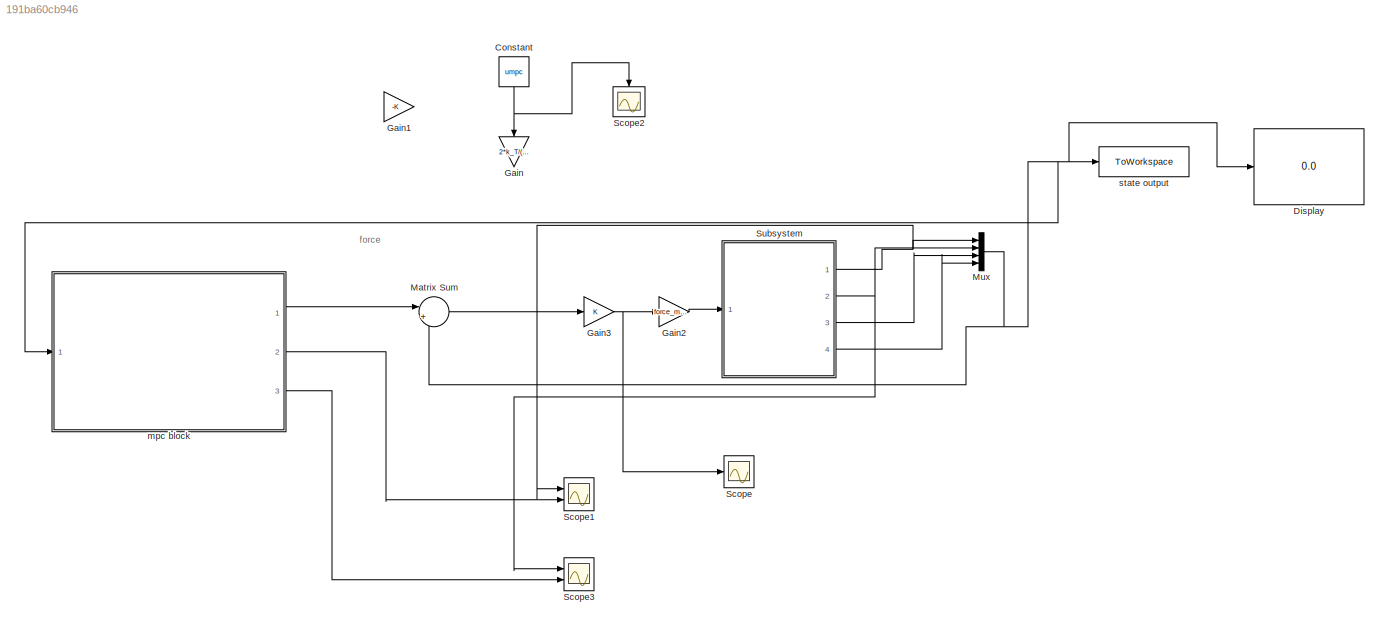
MODEL slx_191ba60cb946
KIND model
CONFIG AbsTol = auto
CONFIG EnableMultiTasking = off
CONFIG FixedStep = auto
CONFIG MaxStep = auto
CONFIG MinStep = auto
CONFIG RelTol = 1e-3
CONFIG SampleTimeConstraint = Unconstrained
CONFIG Solver = ode45
CONFIG SolverName = ode45
CONFIG StartTime = 0.0
CONFIG StopTime = 10
BLOCK [Constant] Constant
  Commented = on
  Value = umpc
BLOCK [Display] Display
  Decimation = 1
  Ports = [1]
BLOCK [Gain] Gain
  Commented = on
  Gain = 2*k_T/(R*r)
  OutDataTypeStr = Inherit: Inherit via internal rule
  ParamDataTypeStr = Inherit: Inherit via internal rule
  SaturateOnIntegerOverflow = off
BLOCK [Gain] Gain1
  Commented = on
  Gain = -K
  Multiplication = Matrix(K*u)
  OutDataTypeStr = Inherit: Inherit via internal rule
  ParamDataTypeStr = Inherit: Inherit via internal rule
  SaturateOnIntegerOverflow = off
BLOCK [Gain] Gain2
  Gain = force_multiplier
  OutDataTypeStr = Inherit: Inherit via internal rule
  ParamDataTypeStr = Inherit: Inherit via internal rule
  SaturateOnIntegerOverflow = off
BLOCK [Gain] Gain3
  Gain = K
  Multiplication = Matrix(K*u)
  OutDataTypeStr = Inherit: Inherit via internal rule
  ParamDataTypeStr = Inherit: Inherit via internal rule
  SaturateOnIntegerOverflow = off
BLOCK [Sum] Matrix Sum
  IconShape = round
  InputSameDT = off
  Inputs = |+-
  OutDataTypeStr = Inherit: Inherit via internal rule
  Ports = [2, 1]
  SaturateOnIntegerOverflow = off
BLOCK [Mux] Mux
  DisplayOption = bar
  Ports = [4, 1]
BLOCK [Scope] Scope
  Floating = off
  NumInputPorts = 1
  Ports = [1]
  ScopeSpecificationString = Simulink.scopes.TimeScopeBlockCfg('CurrentConfiguration', extmgr.ConfigurationSet(extmgr.Configuration('Core','General UI',true,'FigureColor',[1 1 1]),extmgr.Configuration('Core','Source UI',true),extmgr.Configuration('Sources','WiredSimulink',true,'DataLoggingVariableName','ScopeData1'),extmgr.Configuration('Visuals','Time Domain',true,'SerializedDisplays',{struct('MinYLimReal','-13.22858','MaxYL...<+1761ch>
BLOCK [Scope] Scope1
  Floating = off
  NumInputPorts = 2
  Ports = [2]
  ScopeSpecificationString = Simulink.scopes.TimeScopeBlockCfg('CurrentConfiguration', extmgr.ConfigurationSet(extmgr.Configuration('Core','General UI',true,'FigureColor',[1 1 1]),extmgr.Configuration('Core','Source UI',true),extmgr.Configuration('Sources','WiredSimulink',true,'DataLoggingVariableName','ScopeData1'),extmgr.Configuration('Visuals','Time Domain',true,'SerializedDisplays',{struct('MinYLimReal','-30.41312','MaxYL...<+1937ch>
BLOCK [Scope] Scope2
  Commented = on
  Floating = off
  NumInputPorts = 1
  Ports = [1]
  ScopeSpecificationString = Simulink.scopes.TimeScopeBlockCfg('CurrentConfiguration', extmgr.ConfigurationSet(extmgr.Configuration('Core','General UI',true),extmgr.Configuration('Core','Source UI',true),extmgr.Configuration('Sources','WiredSimulink',true,'DataLoggingVariableName','ScopeData1'),extmgr.Configuration('Visuals','Time Domain',true),extmgr.Configuration('Tools','Plot Navigation',true),extmgr.Configuration('Tools',...<+40ch>
BLOCK [Scope] Scope3
  Floating = off
  NumInputPorts = 2
  Ports = [2]
  ScopeSpecificationString = Simulink.scopes.TimeScopeBlockCfg('CurrentConfiguration', extmgr.ConfigurationSet(extmgr.Configuration('Core','General UI',true,'FigureColor',[1 1 1]),extmgr.Configuration('Core','Source UI',true),extmgr.Configuration('Sources','WiredSimulink',true,'DataLoggingVariableName','ScopeData1'),extmgr.Configuration('Visuals','Time Domain',true,'SerializedDisplays',{struct('MinYLimReal','-4.70017','MaxYLi...<+1823ch>
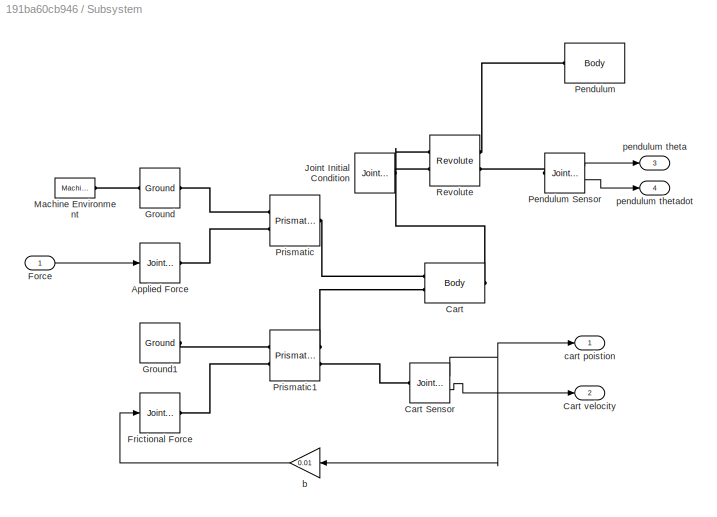
BLOCK [SubSystem] Subsystem
  Ports = [1, 4]
  RequestExecContextInheritance = off
BLOCK [Reference] Subsystem/ Pendulum Sensor  REF=mblibv1/Sensors & 
Actuators/Joint Sensor
  Ports = [0, 2, 0, 0, 0, 1]
  SourceBlock = mblibv1/Sensors & \nActuators/Joint Sensor
  SourceProductBaseCode = MS
  SourceProductName = Simscape Multibody
  SourceType = Joint Sensor
BLOCK [Reference] Subsystem/Applied Force  REF=mblibv1/Sensors & 
Actuators/Joint Actuator
  Ports = [1, 0, 0, 0, 0, 0, 1]
  SourceBlock = mblibv1/Sensors & \nActuators/Joint Actuator
  SourceProductBaseCode = MS
  SourceProductName = Simscape Multibody
  SourceType = Joint Actuator
BLOCK [Reference] Subsystem/Cart  REF=mblibv1/Bodies/Body
  Ports = [0, 0, 0, 0, 0, 2, 1]
  SourceBlock = mblibv1/Bodies/Body
  SourceProductBaseCode = MS
  SourceProductName = Simscape Multibody
  SourceType = Body
BLOCK [Reference] Subsystem/Cart Sensor  REF=mblibv1/Sensors & 
Actuators/Joint Sensor
  Ports = [0, 2, 0, 0, 0, 1]
  SourceBlock = mblibv1/Sensors & \nActuators/Joint Sensor
  SourceProductBaseCode = MS
  SourceProductName = Simscape Multibody
  SourceType = Joint Sensor
BLOCK [Outport] Subsystem/Cart velocity
  IconDisplay = Port number
  Port = 2
BLOCK [Inport] Subsystem/Force
  IconDisplay = Port number
BLOCK [Reference] Subsystem/Frictional Force  REF=mblibv1/Sensors & 
Actuators/Joint Actuator
  Ports = [1, 0, 0, 0, 0, 0, 1]
  SourceBlock = mblibv1/Sensors & \nActuators/Joint Actuator
  SourceProductBaseCode = MS
  SourceProductName = Simscape Multibody
  SourceType = Joint Actuator
BLOCK [Reference] Subsystem/Ground  REF=mblibv1/Bodies/Ground
  Ports = [0, 0, 0, 0, 0, 1, 1]
  SourceBlock = mblibv1/Bodies/Ground
  SourceProductBaseCode = MS
  SourceProductName = Simscape Multibody
  SourceType = Ground
  UserDataPersistent = on
BLOCK [Reference] Subsystem/Ground1  REF=mblibv1/Bodies/Ground
  Ports = [0, 0, 0, 0, 0, 0, 1]
  SourceBlock = mblibv1/Bodies/Ground
  SourceProductBaseCode = MS
  SourceProductName = Simscape Multibody
  SourceType = Ground
  UserDataPersistent = on
BLOCK [Reference] Subsystem/Joint Initial Condition  REF=mblibv1/Sensors & 
Actuators/Joint Initial Condition
  Ports = [0, 0, 0, 0, 0, 0, 1]
  SourceBlock = mblibv1/Sensors & \nActuators/Joint Initial Condition
  SourceProductBaseCode = MS
  SourceProductName = Simscape Multibody
  SourceType = Joint Initial Condition
BLOCK [Reference] Subsystem/Machine Environment  REF=mblibv1/Bodies/Machine
Environment
  Ports = [0, 0, 0, 0, 0, 0, 1]
  SourceBlock = mblibv1/Bodies/Machine\nEnvironment
  SourceProductBaseCode = MS
  SourceProductName = Simscape Multibody
  SourceType = Machine Environment
BLOCK [Reference] Subsystem/Pendulum  REF=mblibv1/Bodies/Body
  Ports = [0, 0, 0, 0, 0, 1]
  SourceBlock = mblibv1/Bodies/Body
  SourceProductBaseCode = MS
  SourceProductName = Simscape Multibody
  SourceType = Body
BLOCK [Reference] Subsystem/Prismatic  REF=mblibv1/Joints/Prismatic
  Ports = [0, 0, 0, 0, 0, 2, 1]
  SourceBlock = mblibv1/Joints/Prismatic
  SourceProductBaseCode = MS
  SourceProductName = Simscape Multibody
  SourceType = Prismatic
BLOCK [Reference] Subsystem/Prismatic1  REF=mblibv1/Joints/Prismatic
  Ports = [0, 0, 0, 0, 0, 2, 2]
  SourceBlock = mblibv1/Joints/Prismatic
  SourceProductBaseCode = MS
  SourceProductName = Simscape Multibody
  SourceType = Prismatic
BLOCK [Reference] Subsystem/Revolute  REF=mblibv1/Joints/Revolute
  Ports = [0, 0, 0, 0, 0, 2, 2]
  SourceBlock = mblibv1/Joints/Revolute
  SourceProductBaseCode = MS
  SourceProductName = Simscape Multibody
  SourceType = Revolute
BLOCK [Gain] Subsystem/b
  Gain = 0.01
  OutDataTypeStr = Inherit: Inherit via internal rule
  ParamDataTypeStr = Inherit: Inherit via internal rule
  SaturateOnIntegerOverflow = off
BLOCK [Outport] Subsystem/cart poistion
  IconDisplay = Port number
BLOCK [Outport] Subsystem/pendulum theta
  IconDisplay = Port number
  Port = 3
BLOCK [Outport] Subsystem/pendulum thetadot
  IconDisplay = Port number
  Port = 4
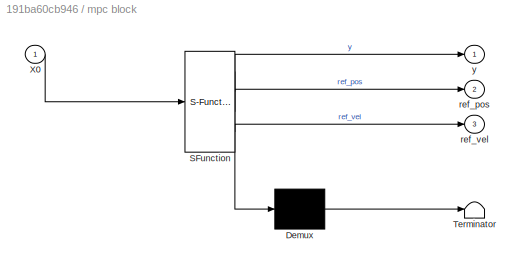
BLOCK [SubSystem] mpc block
  ErrorFcn = Stateflow.Translate.translate
  PermitHierarchicalResolution = ExplicitOnly
  Ports = [1, 3]
  RequestExecContextInheritance = off
  SFBlockType = MATLAB Function
  TreatAsAtomicUnit = on
BLOCK [Demux] mpc block/ Demux 
  Outputs = 1
  Ports = [1, 1]
BLOCK [S-Function] mpc block/ SFunction 
  EnableBusSupport = on
  FunctionName = sf_sfun
  Parameters = obj
  PortCounts = [1 4]
  Ports = [1, 4]
  SFcnIsStateOwnerBlock = off
  SFunctionDeploymentMode = off
  Tag = Stateflow S-Function 2
BLOCK [Terminator] mpc block/ Terminator 
BLOCK [Inport] mpc block/X0
  IconDisplay = Port number
BLOCK [Outport] mpc block/ref_pos
  IconDisplay = Port number
  Port = 2
BLOCK [Outport] mpc block/ref_vel
  IconDisplay = Port number
  Port = 3
BLOCK [Outport] mpc block/y
  IconDisplay = Port number
BLOCK [ToWorkspace] state output
  FixptAsFi = on
  MaxDataPoints = inf
  Ports = [1]
  SampleTime = -1
  VariableName = x1
ANNOTATION (root): force
NET Constant:1 -> Gain:1, Scope2:1
LINE Gain2:1 -> Subsystem:1
NET Gain3:1 -> Gain2:1, Scope:1
LINE Matrix Sum:1 -> Gain3:1
NET Mux:1 -> Display:1, Matrix Sum:2, mpc block:1, state output:1
LINE Subsystem/ Pendulum Sensor:1 -> Subsystem/pendulum theta:1
LINE Subsystem/ Pendulum Sensor:2 -> Subsystem/pendulum thetadot:1
NET Subsystem/Cart Sensor:1 -> Subsystem/b:1, Subsystem/cart poistion:1
LINE Subsystem/Cart Sensor:2 -> Subsystem/Cart velocity:1
LINE Subsystem/Force:1 -> Subsystem/Applied Force:1
LINE Subsystem/b:1 -> Subsystem/Frictional Force:1
NET Subsystem:1 -> Mux:1, Scope1:1
NET Subsystem:2 -> Mux:2, Scope3:1
LINE Subsystem:3 -> Mux:3
LINE Subsystem:4 -> Mux:4
LINE mpc block:1 -> Matrix Sum:1
LINE mpc block:2 -> Scope1:2
LINE mpc block:3 -> Scope3:2
PLINE Subsystem/ Pendulum Sensor:LConn1 -- Subsystem/Revolute:RConn2
PLINE Subsystem/Applied Force:RConn1 -- Subsystem/Prismatic:LConn2
PLINE Subsystem/Cart Sensor:LConn1 -- Subsystem/Prismatic1:RConn2
PLINE Subsystem/Cart:LConn1 -- Subsystem/Prismatic:RConn1
PLINE Subsystem/Cart:LConn2 -- Subsystem/Prismatic1:RConn1
PLINE Subsystem/Cart:RConn1 -- Subsystem/Revolute:LConn1
PLINE Subsystem/Frictional Force:RConn1 -- Subsystem/Prismatic1:LConn2
PLINE Subsystem/Ground1:RConn1 -- Subsystem/Prismatic1:LConn1
PLINE Subsystem/Ground:LConn1 -- Subsystem/Machine Environment:RConn1
PLINE Subsystem/Ground:RConn1 -- Subsystem/Prismatic:LConn1
PLINE Subsystem/Joint Initial Condition:RConn1 -- Subsystem/Revolute:LConn2
PLINE Subsystem/Pendulum:LConn1 -- Subsystem/Revolute:RConn1
note: NET lines group one-source signal fan-out (src -> all destinations, sorted); 1:1 wires keep LINE
CHART mpc block states=1 transitions=1
  STATE_LABEL 'eML_blk_kernel()'
  STATE_LABEL "SCRIPT:\nfunction [y,ref_pos,ref_vel]= fcn(X0,obj)\n    y = [0;0;0;0];\n    ref_pos = 0;\n    \n    refbar = zeros(4*obj.N,1);\n    X0bar = zeros(4*obj.N,1);\n    persistent ii\n\n    if isempty(ii)\n        ii = 1;\n    end\n    \n    coder.extrinsic('quadprog');\n    for kk = 1:obj.N\n        refbar(4*(kk-1)+1: 4*(kk)) = [obj.ref_X(ii+kk);(obj.ref_X(ii+kk)-X0(1))*0.1 ;0 ; 0];\n        X0bar(4*(kk-1)+1: 4*(kk))=...<+458ch>"
